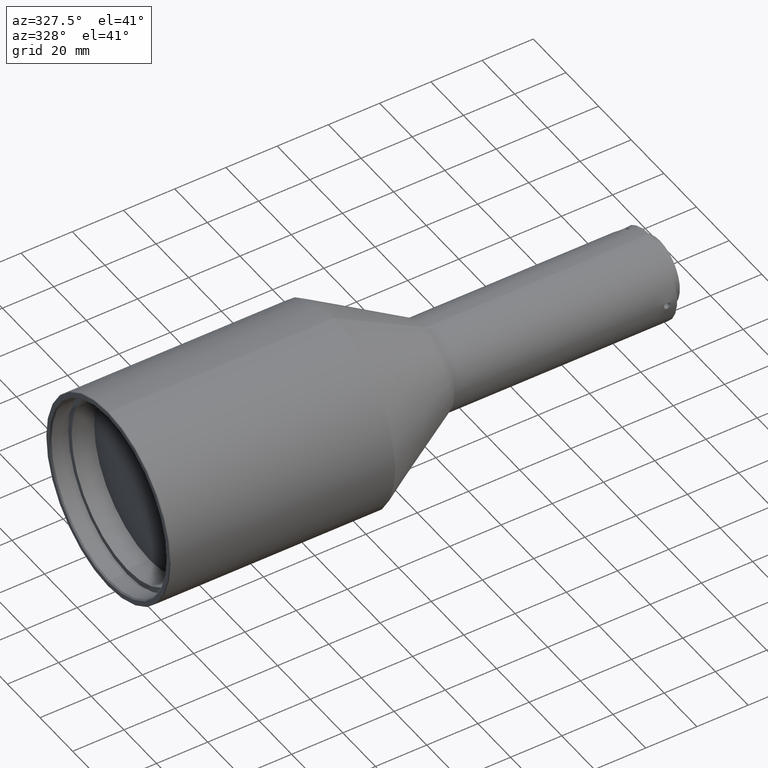
[diagram: clean part render]
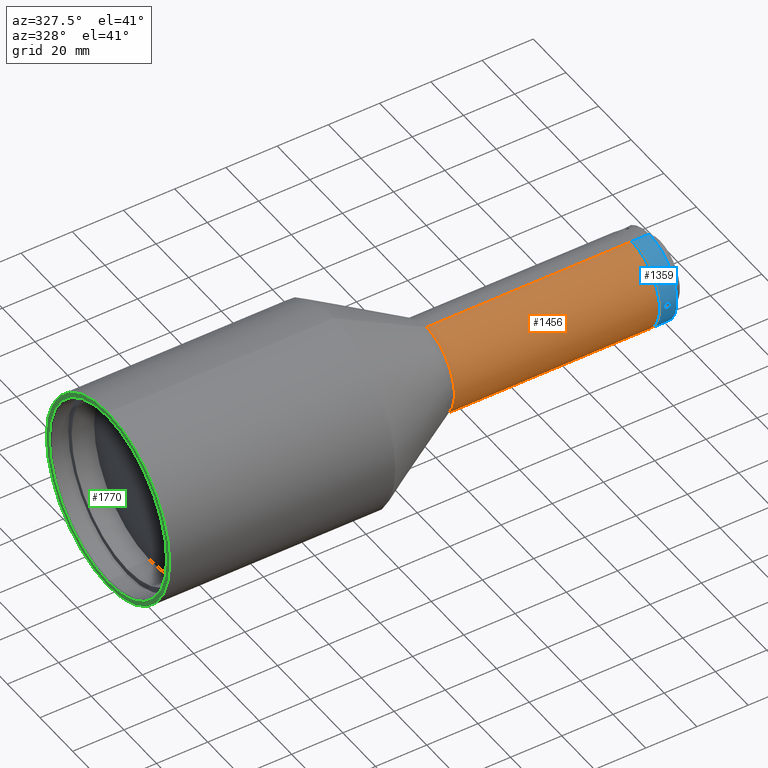
[diagram: same view with three faces highlighted in distinct colors, each labeled with its STEP entity id]
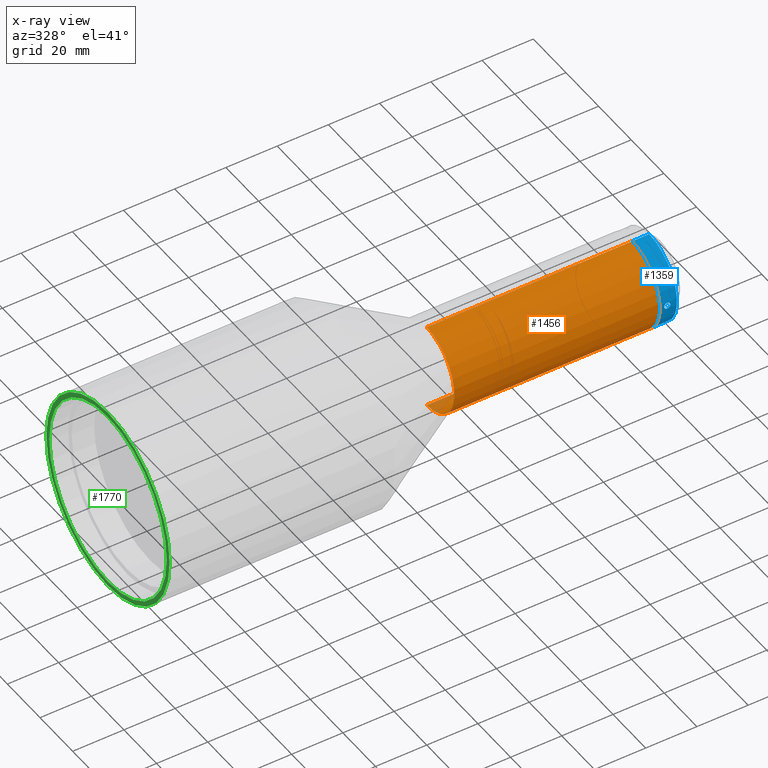
[diagram: x-ray of the same camera — body ghosted, the three highlighted faces saturated]
A machine part, auxiliary view with three faces highlighted in distinct colors.
The next image is the same camera in x-ray (body ghosted, the three faces saturated) — at least one of them is partly hidden behind the body in this view.
Their STEP definitions:

[orange] entity #1456 — the highlighted cylindrical surface (partial cylindrical patch) has radius 17 mm, axis along (1, 0, 0).
#41 = AXIS2_PLACEMENT_3D ( 'NONE', #2414, #1425, #2182 ) ;
#52 = AXIS2_PLACEMENT_3D ( 'NONE', #1742, #2343, #1399 ) ;
#172 = ORIENTED_EDGE ( 'NONE', *, *, #779, .T. ) ;
#244 = CARTESIAN_POINT ( 'NONE',  ( 36.39999999999999858, 2.081899558550500280E-15, 17.00000000000000000 ) ) ;
#252 = LINE ( 'NONE', #648, #520 ) ;
#317 = DIRECTION ( 'NONE',  ( 0.000000000000000000, 0.000000000000000000, 1.000000000000000000 ) ) ;
#376 = CIRCLE ( 'NONE', #1526, 17.00000000000000000 ) ;
#520 = VECTOR ( 'NONE', #615, 1000.000000000000000 ) ;
#615 = DIRECTION ( 'NONE',  ( 1.000000000000000000, 0.000000000000000000, 0.000000000000000000 ) ) ;
#616 = EDGE_CURVE ( 'NONE', #945, #1016, #376, .T. ) ;
#648 = CARTESIAN_POINT ( 'NONE',  ( 64.40340257123030199, 2.081899558550500280E-15, 17.00000000000000000 ) ) ;
#739 = CARTESIAN_POINT ( 'NONE',  ( 36.39999999999999858, 0.000000000000000000, 0.000000000000000000 ) ) ;
#779 = EDGE_CURVE ( 'NONE', #945, #1869, #1739, .T. ) ;
#793 = EDGE_LOOP ( 'NONE', ( #1005, #2436, #172, #1087 ) ) ;
#813 = CARTESIAN_POINT ( 'NONE',  ( 36.39999999999999858, 0.000000000000000000, -17.00000000000000000 ) ) ;
#945 = VERTEX_POINT ( 'NONE', #813 ) ;
#1005 = ORIENTED_EDGE ( 'NONE', *, *, #1119, .F. ) ;
#1016 = VERTEX_POINT ( 'NONE', #244 ) ;
#1087 = ORIENTED_EDGE ( 'NONE', *, *, #1819, .T. ) ;
#1119 = EDGE_CURVE ( 'NONE', #1016, #2420, #252, .T. ) ;
#1164 = CYLINDRICAL_SURFACE ( 'NONE', #52, 17.00000000000000000 ) ;
#1381 = CARTESIAN_POINT ( 'NONE',  ( 116.5339999999999918, 2.081899558550500280E-15, 17.00000000000000000 ) ) ;
#1399 = DIRECTION ( 'NONE',  ( 0.000000000000000000, 0.000000000000000000, -1.000000000000000000 ) ) ;
#1425 = DIRECTION ( 'NONE',  ( -1.000000000000000000, -0.000000000000000000, -0.000000000000000000 ) ) ;
#1430 = CIRCLE ( 'NONE', #41, 17.00000000000000000 ) ;
#1456 = ADVANCED_FACE ( 'NONE', ( #1571 ), #1164, .T. ) ;
#1526 = AXIS2_PLACEMENT_3D ( 'NONE', #739, #1682, #317 ) ;
#1571 = FACE_OUTER_BOUND ( 'NONE', #793, .T. ) ;
#1644 = CARTESIAN_POINT ( 'NONE',  ( 116.5339999999999918, 0.000000000000000000, -17.00000000000000000 ) ) ;
#1682 = DIRECTION ( 'NONE',  ( -1.000000000000000000, 0.000000000000000000, 0.000000000000000000 ) ) ;
#1729 = DIRECTION ( 'NONE',  ( 1.000000000000000000, 0.000000000000000000, 0.000000000000000000 ) ) ;
#1739 = LINE ( 'NONE', #2283, #2129 ) ;
#1742 = CARTESIAN_POINT ( 'NONE',  ( 64.40340257123030199, 0.000000000000000000, 0.000000000000000000 ) ) ;
#1819 = EDGE_CURVE ( 'NONE', #1869, #2420, #1430, .T. ) ;
#1869 = VERTEX_POINT ( 'NONE', #1644 ) ;
#2129 = VECTOR ( 'NONE', #1729, 1000.000000000000000 ) ;
#2182 = DIRECTION ( 'NONE',  ( 0.000000000000000000, 0.000000000000000000, -1.000000000000000000 ) ) ;
#2283 = CARTESIAN_POINT ( 'NONE',  ( 64.40340257123030199, 0.000000000000000000, -17.00000000000000000 ) ) ;
#2343 = DIRECTION ( 'NONE',  ( 1.000000000000000000, 0.000000000000000000, 0.000000000000000000 ) ) ;
#2414 = CARTESIAN_POINT ( 'NONE',  ( 116.5339999999999918, 0.000000000000000000, 0.000000000000000000 ) ) ;
#2420 = VERTEX_POINT ( 'NONE', #1381 ) ;
#2436 = ORIENTED_EDGE ( 'NONE', *, *, #616, .F. ) ;

[blue] entity #1359 — the highlighted cylindrical surface (partial cylindrical patch) has radius 17 mm, axis along (1, 0, 0).
#5 = VERTEX_POINT ( 'NONE', #180 ) ;
#14 = CARTESIAN_POINT ( 'NONE',  ( 101.5340000000000060, 2.081899558550500280E-15, 17.00000000000000000 ) ) ;
#30 = ORIENTED_EDGE ( 'NONE', *, *, #2043, .T. ) ;
#38 = VECTOR ( 'NONE', #2160, 1000.000000000000000 ) ;
#49 = CARTESIAN_POINT ( 'NONE',  ( 119.8559094116147605, -16.95788647352658174, -1.197450011138716075 ) ) ;
#68 = CARTESIAN_POINT ( 'NONE',  ( 119.6957308613192623, -16.95548081742301960, 1.229500000000000037 ) ) ;
#78 = CARTESIAN_POINT ( 'NONE',  ( 118.5496805208047135, -16.98364613143732171, -0.7542298148008307335 ) ) ;
#80 = CARTESIAN_POINT ( 'NONE',  ( 120.5177134651356567, -16.98360913244729176, -0.7550698109004858605 ) ) ;
#89 = CARTESIAN_POINT ( 'NONE',  ( 118.7778283571117726, -16.97195176266627215, -0.9828285186895464598 ) ) ;
#101 = CARTESIAN_POINT ( 'NONE',  ( 118.9136481867369213, -16.96616757688746802, 1.073785464724972716 ) ) ;
#113 = EDGE_CURVE ( 'NONE', #2173, #365, #575, .T. ) ;
#116 = DIRECTION ( 'NONE',  ( 1.000000000000000000, 0.000000000000000000, 0.000000000000000000 ) ) ;
#180 = CARTESIAN_POINT ( 'NONE',  ( 123.3340000000000032, 2.081899558550500280E-15, -17.00000000000000000 ) ) ;
#242 = CARTESIAN_POINT ( 'NONE',  ( 101.5340000000000060, 0.000000000000000000, -17.00000000000000000 ) ) ;
#258 = CARTESIAN_POINT ( 'NONE',  ( 118.3045857112310131, -16.99999380106214275, 0.1608509108749556493 ) ) ;
#274 = CARTESIAN_POINT ( 'NONE',  ( 119.3737732102852505, -16.95548081742302315, -1.229499999999999815 ) ) ;
#282 = LINE ( 'NONE', #242, #38 ) ;
#284 = EDGE_CURVE ( 'NONE', #1263, #1950, #717, .T. ) ;
#324 = AXIS2_PLACEMENT_3D ( 'NONE', #1886, #539, #1303 ) ;
#365 = VERTEX_POINT ( 'NONE', #1850 ) ;
#386 = CYLINDRICAL_SURFACE ( 'NONE', #324, 17.00000000000000000 ) ;
#473 = ORIENTED_EDGE ( 'NONE', *, *, #1459, .T. ) ;
#501 = DIRECTION ( 'NONE',  ( 0.000000000000000000, 0.000000000000000000, -1.000000000000000000 ) ) ;
#539 = DIRECTION ( 'NONE',  ( 1.000000000000000000, 0.000000000000000000, 0.000000000000000000 ) ) ;
#575 = LINE ( 'NONE', #14, #2313 ) ;
#602 = CARTESIAN_POINT ( 'NONE',  ( 120.1529530972830173, -16.96612480551660340, -1.074434391587507420 ) ) ;
#622 = CARTESIAN_POINT ( 'NONE',  ( 120.2890035514623719, -16.97189787103902248, -0.9837643204048737156 ) ) ;
#633 = CARTESIAN_POINT ( 'NONE',  ( 120.2900178643899949, -16.97195019770530067, 0.9827348842908342208 ) ) ;
#685 = CARTESIAN_POINT ( 'NONE',  ( 119.3723425046046458, -16.95548081742301960, 1.229500000000000037 ) ) ;
#717 = B_SPLINE_CURVE_WITH_KNOTS ( 'NONE', 3,
 ( #1785, #274, #1407, #1232, #89, #78, #851, #999, #1054, #258, #1245, #1774, #1984, #1419, #101, #1397, #685, #1012 ),
 .UNSPECIFIED., .F., .F.,
 ( 4, 2, 2, 2, 2, 2, 2, 2, 4 ),
 ( 0.007512252339131490764, 0.007996783059000842769, 0.008481313778870196510, 0.008965844498739550250, 0.009450375218608902256, 0.009934905938478255996, 0.01041943665834760974, 0.01090396737821696348, 0.01138849809808631722 ),
 .UNSPECIFIED. ) ;
#755 = CARTESIAN_POINT ( 'NONE',  ( 119.5340000000000060, -16.95548081742301960, 1.229499999999999815 ) ) ;
#785 = CARTESIAN_POINT ( 'NONE',  ( 119.8562236831667889, -16.95789299154826324, 1.197358347549127400 ) ) ;
#798 = DIRECTION ( 'NONE',  ( 0.000000000000000000, 0.000000000000000000, -1.000000000000000000 ) ) ;
#830 = CARTESIAN_POINT ( 'NONE',  ( 119.5340000000000060, -16.95548081742301960, -1.229499999999999815 ) ) ;
#851 = CARTESIAN_POINT ( 'NONE',  ( 118.4590504560131734, -16.98941143344080373, -0.6180158784721858645 ) ) ;
#875 = ORIENTED_EDGE ( 'NONE', *, *, #1575, .T. ) ;
#994 = CARTESIAN_POINT ( 'NONE',  ( 120.7634223081334852, -16.99999438105066218, 0.1614264257606875808 ) ) ;
#999 = CARTESIAN_POINT ( 'NONE',  ( 118.3363762771019623, -16.99761415358814531, -0.3211815164561772629 ) ) ;
#1001 = CARTESIAN_POINT ( 'NONE',  ( 123.3340000000000032, 0.000000000000000000, 0.000000000000000000 ) ) ;
#1012 = CARTESIAN_POINT ( 'NONE',  ( 119.5340000000000060, -16.95548081742301960, 1.229499999999999815 ) ) ;
#1054 = CARTESIAN_POINT ( 'NONE',  ( 118.3044146393038289, -17.00000617358594823, -0.1595379256487288178 ) ) ;
#1115 = FACE_OUTER_BOUND ( 'NONE', #1992, .T. ) ;
#1136 = EDGE_LOOP ( 'NONE', ( #2202, #473 ) ) ;
#1232 = CARTESIAN_POINT ( 'NONE',  ( 118.9128337137329794, -16.96619526856366633, -1.073358760811355284 ) ) ;
#1245 = CARTESIAN_POINT ( 'NONE',  ( 118.3368460289474626, -16.99758108249477218, 0.3227305015282460054 ) ) ;
#1263 = VERTEX_POINT ( 'NONE', #2260 ) ;
#1303 = DIRECTION ( 'NONE',  ( 0.000000000000000000, 0.000000000000000000, -1.000000000000000000 ) ) ;
#1323 = AXIS2_PLACEMENT_3D ( 'NONE', #2210, #116, #501 ) ;
#1335 = ORIENTED_EDGE ( 'NONE', *, *, #2469, .T. ) ;
#1340 = B_SPLINE_CURVE_WITH_KNOTS ( 'NONE', 3,
 ( #2357, #68, #785, #1376, #633, #1956, #2144, #1551, #994, #1365, #2125, #2167, #80, #622, #602, #49, #1767, #830 ),
 .UNSPECIFIED., .F., .F.,
 ( 4, 2, 2, 2, 2, 2, 2, 2, 4 ),
 ( 0.003634247401917685503, 0.004118998019069411431, 0.004603748636221136926, 0.005088499253372862421, 0.005573249870524587916, 0.006058000487676313411, 0.006542751104828039774, 0.007027501721979765269, 0.007512252339131490764 ),
 .UNSPECIFIED. ) ;
#1343 = DIRECTION ( 'NONE',  ( 1.000000000000000000, 0.000000000000000000, 0.000000000000000000 ) ) ;
#1359 = ADVANCED_FACE ( 'NONE', ( #1115, #2089 ), #386, .T. ) ;
#1365 = CARTESIAN_POINT ( 'NONE',  ( 120.7635774060241118, -17.00000559827621771, -0.1602407727925410641 ) ) ;
#1376 = CARTESIAN_POINT ( 'NONE',  ( 120.1531419245314112, -16.96613224437203726, 1.074317640051889233 ) ) ;
#1397 = CARTESIAN_POINT ( 'NONE',  ( 119.2125869286926161, -16.95786874100681629, 1.197725024396749882 ) ) ;
#1407 = CARTESIAN_POINT ( 'NONE',  ( 119.2122513432705944, -16.95787299557184014, -1.197674574539355330 ) ) ;
#1419 = CARTESIAN_POINT ( 'NONE',  ( 118.7780253190825732, -16.97194614717259142, 0.9828501031325551640 ) ) ;
#1459 = EDGE_CURVE ( 'NONE', #1950, #1263, #1340, .T. ) ;
#1551 = CARTESIAN_POINT ( 'NONE',  ( 120.7311063951237600, -16.99757751134423245, 0.3229420098826946139 ) ) ;
#1575 = EDGE_CURVE ( 'NONE', #2173, #2428, #2407, .T. ) ;
#1622 = CARTESIAN_POINT ( 'NONE',  ( 116.5339999999999918, 2.081899558550500280E-15, 17.00000000000000000 ) ) ;
#1760 = CARTESIAN_POINT ( 'NONE',  ( 116.5339999999999918, 0.000000000000000000, -17.00000000000000000 ) ) ;
#1767 = CARTESIAN_POINT ( 'NONE',  ( 119.6942995063335218, -16.95548081742302315, -1.229499999999999593 ) ) ;
#1774 = CARTESIAN_POINT ( 'NONE',  ( 118.4595086350389437, -16.98938247020631209, 0.6187090702806119502 ) ) ;
#1775 = DIRECTION ( 'NONE',  ( -1.000000000000000000, -0.000000000000000000, -0.000000000000000000 ) ) ;
#1785 = CARTESIAN_POINT ( 'NONE',  ( 119.5340000000000060, -16.95548081742301960, -1.229499999999999815 ) ) ;
#1850 = CARTESIAN_POINT ( 'NONE',  ( 123.3340000000000032, 0.000000000000000000, 17.00000000000000000 ) ) ;
#1871 = CIRCLE ( 'NONE', #2189, 17.00000000000000000 ) ;
#1886 = CARTESIAN_POINT ( 'NONE',  ( 101.5340000000000060, 0.000000000000000000, 0.000000000000000000 ) ) ;
#1950 = VERTEX_POINT ( 'NONE', #755 ) ;
#1956 = CARTESIAN_POINT ( 'NONE',  ( 120.5165825711923731, -16.98355083636290885, 0.7562158123630118300 ) ) ;
#1984 = CARTESIAN_POINT ( 'NONE',  ( 118.5508223206200995, -16.98358315119542894, 0.7555486047800127336 ) ) ;
#1992 = EDGE_LOOP ( 'NONE', ( #2262, #875, #1335, #30 ) ) ;
#2043 = EDGE_CURVE ( 'NONE', #5, #365, #1871, .T. ) ;
#2089 = FACE_BOUND ( 'NONE', #1136, .T. ) ;
#2125 = CARTESIAN_POINT ( 'NONE',  ( 120.7319239382056253, -16.99763336764646837, -0.3206690113776957674 ) ) ;
#2144 = CARTESIAN_POINT ( 'NONE',  ( 120.6083211875900219, -16.98937148769823224, 0.6190228177446185365 ) ) ;
#2160 = DIRECTION ( 'NONE',  ( 1.000000000000000000, 0.000000000000000000, 0.000000000000000000 ) ) ;
#2167 = CARTESIAN_POINT ( 'NONE',  ( 120.6081738485100345, -16.98936042928118439, -0.6196780775218251325 ) ) ;
#2173 = VERTEX_POINT ( 'NONE', #1622 ) ;
#2189 = AXIS2_PLACEMENT_3D ( 'NONE', #1001, #1775, #798 ) ;
#2202 = ORIENTED_EDGE ( 'NONE', *, *, #284, .T. ) ;
#2210 = CARTESIAN_POINT ( 'NONE',  ( 116.5339999999999918, 0.000000000000000000, 0.000000000000000000 ) ) ;
#2260 = CARTESIAN_POINT ( 'NONE',  ( 119.5340000000000060, -16.95548081742301960, -1.229499999999999815 ) ) ;
#2262 = ORIENTED_EDGE ( 'NONE', *, *, #113, .F. ) ;
#2313 = VECTOR ( 'NONE', #1343, 1000.000000000000000 ) ;
#2357 = CARTESIAN_POINT ( 'NONE',  ( 119.5340000000000060, -16.95548081742301960, 1.229499999999999815 ) ) ;
#2407 = CIRCLE ( 'NONE', #1323, 17.00000000000000000 ) ;
#2428 = VERTEX_POINT ( 'NONE', #1760 ) ;
#2469 = EDGE_CURVE ( 'NONE', #2428, #5, #282, .T. ) ;

[green] entity #1770 — the highlighted planar face has unit normal (-1, 0, 0).
#20 = EDGE_LOOP ( 'NONE', ( #111, #109 ) ) ;
#109 = ORIENTED_EDGE ( 'NONE', *, *, #1649, .F. ) ;
#111 = ORIENTED_EDGE ( 'NONE', *, *, #482, .F. ) ;
#112 = DIRECTION ( 'NONE',  ( 0.000000000000000000, 0.000000000000000000, 1.000000000000000000 ) ) ;
#243 = VERTEX_POINT ( 'NONE', #814 ) ;
#261 = EDGE_CURVE ( 'NONE', #243, #2118, #1225, .T. ) ;
#293 = PLANE ( 'NONE',  #1226 ) ;
#302 = CARTESIAN_POINT ( 'NONE',  ( -87.99999999999839417, 3.652049423109171981E-17, 0.000000000000000000 ) ) ;
#428 = DIRECTION ( 'NONE',  ( 0.000000000000000000, 0.000000000000000000, 1.000000000000000000 ) ) ;
#482 = EDGE_CURVE ( 'NONE', #493, #1174, #1105, .T. ) ;
#493 = VERTEX_POINT ( 'NONE', #2384 ) ;
#647 = FACE_OUTER_BOUND ( 'NONE', #20, .T. ) ;
#660 = DIRECTION ( 'NONE',  ( -1.000000000000000000, 0.000000000000000000, 0.000000000000000000 ) ) ;
#682 = AXIS2_PLACEMENT_3D ( 'NONE', #1944, #1002, #428 ) ;
#814 = CARTESIAN_POINT ( 'NONE',  ( -87.99999999999839417, 4.403646192714010047E-15, -35.95850000000000080 ) ) ;
#869 = DIRECTION ( 'NONE',  ( 0.000000000000000000, 1.000000000000000000, 0.000000000000000000 ) ) ;
#893 = DIRECTION ( 'NONE',  ( 1.000000000000000000, -1.826024711554533913E-16, 0.000000000000000000 ) ) ;
#934 = DIRECTION ( 'NONE',  ( 0.000000000000000000, 1.000000000000000000, 0.000000000000000000 ) ) ;
#1002 = DIRECTION ( 'NONE',  ( 1.000000000000000000, -0.000000000000000000, -0.000000000000000000 ) ) ;
#1034 = DIRECTION ( 'NONE',  ( 0.000000000000000000, 0.000000000000000000, 1.000000000000000000 ) ) ;
#1049 = CARTESIAN_POINT ( 'NONE',  ( -87.99999999999839417, 0.000000000000000000, 38.00000000000000000 ) ) ;
#1105 = CIRCLE ( 'NONE', #1581, 37.79999999999999716 ) ;
#1158 = AXIS2_PLACEMENT_3D ( 'NONE', #2108, #893, #934 ) ;
#1160 = ORIENTED_EDGE ( 'NONE', *, *, #1429, .T. ) ;
#1174 = VERTEX_POINT ( 'NONE', #1238 ) ;
#1225 = CIRCLE ( 'NONE', #2190, 35.95850000000000080 ) ;
#1226 = AXIS2_PLACEMENT_3D ( 'NONE', #1049, #660, #1034 ) ;
#1238 = CARTESIAN_POINT ( 'NONE',  ( -87.99999999999839417, -37.79999999999999716, 4.641411368768468584E-15 ) ) ;
#1400 = DIRECTION ( 'NONE',  ( 1.000000000000000000, -1.826024711554533913E-16, 0.000000000000000000 ) ) ;
#1415 = ORIENTED_EDGE ( 'NONE', *, *, #261, .T. ) ;
#1429 = EDGE_CURVE ( 'NONE', #2118, #243, #1887, .T. ) ;
#1481 = EDGE_LOOP ( 'NONE', ( #1160, #1415 ) ) ;
#1581 = AXIS2_PLACEMENT_3D ( 'NONE', #302, #1400, #869 ) ;
#1596 = CARTESIAN_POINT ( 'NONE',  ( -87.99999999999839417, 0.000000000000000000, 35.95850000000000080 ) ) ;
#1600 = FACE_BOUND ( 'NONE', #1481, .T. ) ;
#1637 = CARTESIAN_POINT ( 'NONE',  ( -87.99999999999839417, 0.000000000000000000, 0.000000000000000000 ) ) ;
#1649 = EDGE_CURVE ( 'NONE', #1174, #493, #1926, .T. ) ;
#1770 = ADVANCED_FACE ( 'NONE', ( #1600, #647 ), #293, .T. ) ;
#1799 = DIRECTION ( 'NONE',  ( 1.000000000000000000, -0.000000000000000000, -0.000000000000000000 ) ) ;
#1887 = CIRCLE ( 'NONE', #682, 35.95850000000000080 ) ;
#1926 = CIRCLE ( 'NONE', #1158, 37.79999999999999716 ) ;
#1944 = CARTESIAN_POINT ( 'NONE',  ( -87.99999999999839417, 0.000000000000000000, 0.000000000000000000 ) ) ;
#2108 = CARTESIAN_POINT ( 'NONE',  ( -87.99999999999839417, 3.652049423109171981E-17, 0.000000000000000000 ) ) ;
#2118 = VERTEX_POINT ( 'NONE', #1596 ) ;
#2190 = AXIS2_PLACEMENT_3D ( 'NONE', #1637, #1799, #112 ) ;
#2384 = CARTESIAN_POINT ( 'NONE',  ( -87.99999999999839417, 37.79999999999999716, 0.000000000000000000 ) ) ;